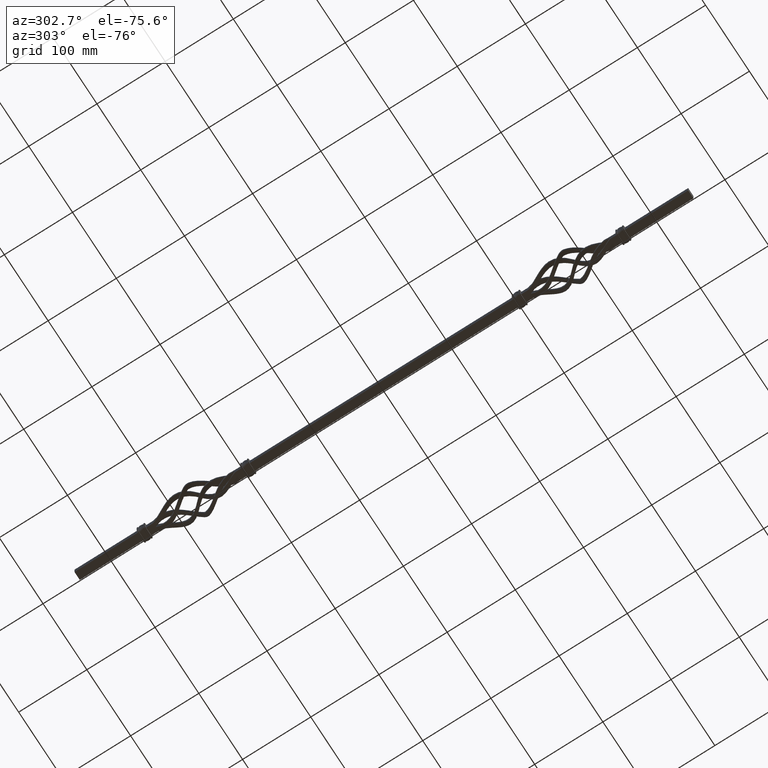
[diagram: clean part render]
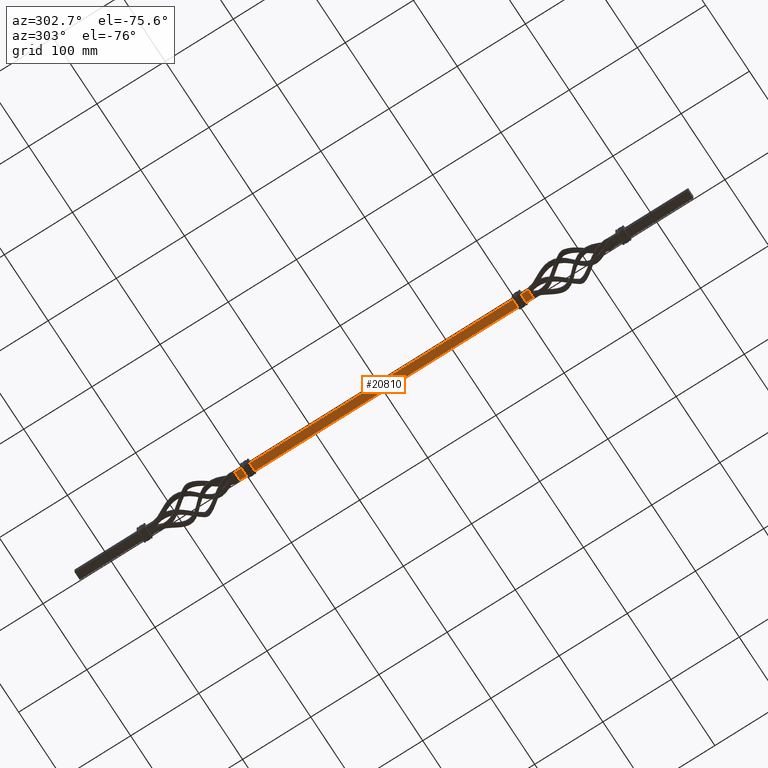
[diagram: same view with one face highlighted and labeled with its STEP entity id]
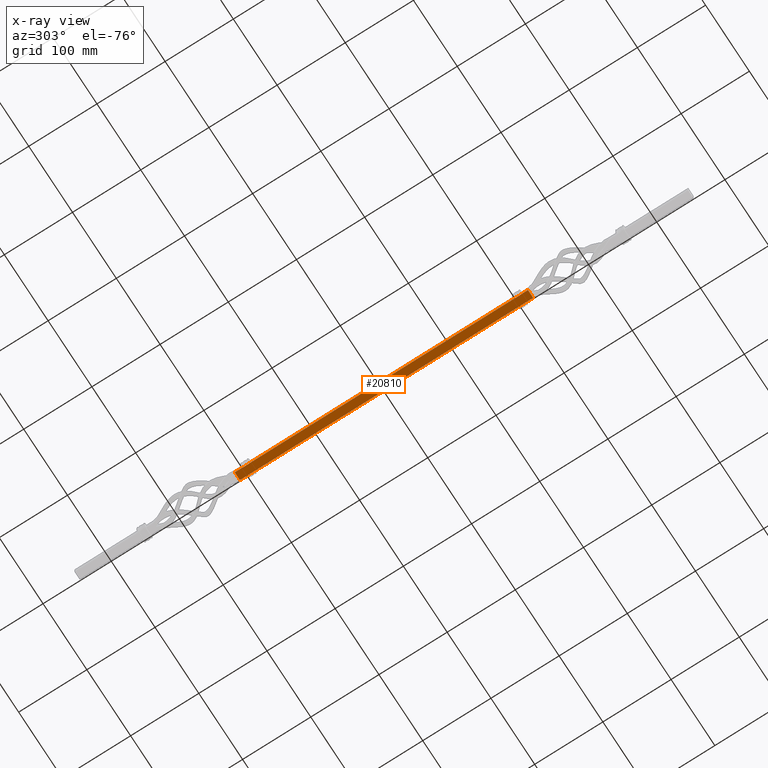
[diagram: x-ray of the same camera — body ghosted, the highlighted face saturated]
A machine part, auxiliary view. The second image highlights one B-rep face of the part: STEP entity #20810.
The next image is the same camera in x-ray: the body ghosted, the highlighted face saturated — about 0% of this face is hidden behind the body in this view.
In plain terms, the highlighted planar face has unit normal (0, 0, -1).
Its self-contained STEP definition (entity closure, byte-faithful):
#431 = CARTESIAN_POINT ( 'NONE',  ( 5.899999999728106737, 194.0000000000000000, -5.999999999999938716 ) ) ;
#949 = VECTOR ( 'NONE', #12552, 1000.000000000000000 ) ;
#1277 = VERTEX_POINT ( 'NONE', #10955 ) ;
#1296 = EDGE_CURVE ( 'NONE', #29489, #16997, #8900, .T. ) ;
#1341 = VERTEX_POINT ( 'NONE', #4289 ) ;
#1386 = VERTEX_POINT ( 'NONE', #431 ) ;
#1559 = LINE ( 'NONE', #23351, #9786 ) ;
#1947 = CARTESIAN_POINT ( 'NONE',  ( 5.900000000000131806, -204.0000000000000284, -5.999999999999938716 ) ) ;
#2047 = CARTESIAN_POINT ( 'NONE',  ( 6.000000000000000000, -204.3564495403946921, -5.999999999999938716 ) ) ;
#2289 = VECTOR ( 'NONE', #13179, 1000.000000000000000 ) ;
#2325 = EDGE_CURVE ( 'NONE', #22729, #29489, #8846, .T. ) ;
#2393 = LINE ( 'NONE', #27145, #21433 ) ;
#2481 = ORIENTED_EDGE ( 'NONE', *, *, #18950, .F. ) ;
#2769 = EDGE_LOOP ( 'NONE', ( #7223, #21032, #23254, #23362, #9645, #24294, #29984, #5933, #3305, #7260, #11704, #8876, #9341, #24890, #19594, #24636, #6767, #12547, #17560, #30873, #2481, #5408 ) ) ;
#3023 = VERTEX_POINT ( 'NONE', #20065 ) ;
#3305 = ORIENTED_EDGE ( 'NONE', *, *, #14228, .F. ) ;
#3418 = CARTESIAN_POINT ( 'NONE',  ( 5.899999999728106737, 194.0000000000000000, -5.999999999999938716 ) ) ;
#3558 = PLANE ( 'NONE',  #13133 ) ;
#3856 = DIRECTION ( 'NONE',  ( 0.000000000000000000, -1.000000000000000000, 0.000000000000000000 ) ) ;
#3881 = CARTESIAN_POINT ( 'NONE',  ( -8.673617379884035472E-16, -215.0000000000000284, -5.999999999999938716 ) ) ;
#3991 = B_SPLINE_CURVE_WITH_KNOTS ( 'NONE', 3,
 ( #13211, #15814, #22481, #17789 ),
 .UNSPECIFIED., .F., .F.,
 ( 4, 4 ),
 ( 0.001310261336106765748, 0.001680737425676013608 ),
 .UNSPECIFIED. ) ;
#4099 = DIRECTION ( 'NONE',  ( 0.000000000000000000, 1.000000000000000000, 0.000000000000000000 ) ) ;
#4105 = EDGE_CURVE ( 'NONE', #1341, #30235, #17307, .T. ) ;
#4289 = CARTESIAN_POINT ( 'NONE',  ( 5.999999999727976707, 215.0000000000000284, -6.000000000000022204 ) ) ;
#4318 = LINE ( 'NONE', #15825, #20302 ) ;
#4375 = VECTOR ( 'NONE', #16946, 1000.000000000000000 ) ;
#5093 = LINE ( 'NONE', #9930, #14745 ) ;
#5094 = CARTESIAN_POINT ( 'NONE',  ( -5.941135304131036854, 204.2473469721293213, -5.999999999999938716 ) ) ;
#5355 = EDGE_CURVE ( 'NONE', #1277, #16997, #13919, .T. ) ;
#5408 = ORIENTED_EDGE ( 'NONE', *, *, #13253, .F. ) ;
#5566 = CARTESIAN_POINT ( 'NONE',  ( -5.900000000272155987, 194.0000000000000000, -5.999999999999938716 ) ) ;
#5798 = CARTESIAN_POINT ( 'NONE',  ( 5.900000000000132694, -194.0000000000000000, -5.999999999999938716 ) ) ;
#5933 = ORIENTED_EDGE ( 'NONE', *, *, #27174, .F. ) ;
#6039 = VERTEX_POINT ( 'NONE', #14882 ) ;
#6225 = EDGE_CURVE ( 'NONE', #22580, #1277, #13052, .T. ) ;
#6420 = EDGE_CURVE ( 'NONE', #23204, #1341, #20181, .T. ) ;
#6422 = CARTESIAN_POINT ( 'NONE',  ( 5.899999999728129829, 204.1256050120199745, -5.999999999999938716 ) ) ;
#6767 = ORIENTED_EDGE ( 'NONE', *, *, #1296, .T. ) ;
#6852 = VECTOR ( 'NONE', #19796, 1000.000000000000000 ) ;
#6908 = VECTOR ( 'NONE', #9478, 1000.000000000000000 ) ;
#7179 = VECTOR ( 'NONE', #21300, 1000.000000000000000 ) ;
#7223 = ORIENTED_EDGE ( 'NONE', *, *, #22896, .F. ) ;
#7260 = ORIENTED_EDGE ( 'NONE', *, *, #24767, .F. ) ;
#7353 = CARTESIAN_POINT ( 'NONE',  ( -5.900000000000130029, -204.1260895240804700, -5.999999999999938716 ) ) ;
#7512 = B_SPLINE_CURVE_WITH_KNOTS ( 'NONE', 3,
 ( #28456, #18861, #16476, #9471 ),
 .UNSPECIFIED., .F., .F.,
 ( 4, 4 ),
 ( 0.001680737425676015993, 0.002051352701520401441 ),
 .UNSPECIFIED. ) ;
#7575 = VERTEX_POINT ( 'NONE', #24405 ) ;
#7779 = CARTESIAN_POINT ( 'NONE',  ( -5.900000000272179079, 193.8743949883602795, -5.999999999999938716 ) ) ;
#8846 = LINE ( 'NONE', #26401, #949 ) ;
#8876 = ORIENTED_EDGE ( 'NONE', *, *, #20991, .F. ) ;
#8900 = LINE ( 'NONE', #14060, #21577 ) ;
#9001 = VERTEX_POINT ( 'NONE', #30379 ) ;
#9332 = DIRECTION ( 'NONE',  ( 0.000000000000000000, 1.000000000000000000, 0.000000000000000000 ) ) ;
#9341 = ORIENTED_EDGE ( 'NONE', *, *, #17240, .F. ) ;
#9343 = CARTESIAN_POINT ( 'NONE',  ( -6.000000000000000000, 193.6435504601002151, -6.000000000004954259 ) ) ;
#9471 = CARTESIAN_POINT ( 'NONE',  ( 6.000000000000000000, -193.6435504595882264, -5.999999999999938716 ) ) ;
#9478 = DIRECTION ( 'NONE',  ( -1.000000000000000000, -0.000000000000000000, -0.000000000000000000 ) ) ;
#9645 = ORIENTED_EDGE ( 'NONE', *, *, #19219, .F. ) ;
#9749 = LINE ( 'NONE', #13487, #2289 ) ;
#9786 = VECTOR ( 'NONE', #18447, 1000.000000000000000 ) ;
#9813 = DIRECTION ( 'NONE',  ( -1.000000000000000000, 0.000000000000000000, 3.491481338843133750E-15 ) ) ;
#9930 = CARTESIAN_POINT ( 'NONE',  ( -5.900000000272155987, 205.0000000000000284, -5.999999999999938716 ) ) ;
#10764 = DIRECTION ( 'NONE',  ( 0.000000000000000000, 0.000000000000000000, -1.000000000000000000 ) ) ;
#10955 = CARTESIAN_POINT ( 'NONE',  ( -6.000000000000000000, -204.3564495404118020, -5.999999999999940492 ) ) ;
#11475 = VECTOR ( 'NONE', #19620, 1000.000000000000000 ) ;
#11704 = ORIENTED_EDGE ( 'NONE', *, *, #29119, .F. ) ;
#11781 = B_SPLINE_CURVE_WITH_KNOTS ( 'NONE', 3,
 ( #19441, #7779, #21846, #29344 ),
 .UNSPECIFIED., .F., .F.,
 ( 4, 4 ),
 ( 0.001730514864180702963, 0.002100971034116490103 ),
 .UNSPECIFIED. ) ;
#11991 = B_SPLINE_CURVE_WITH_KNOTS ( 'NONE', 3,
 ( #26342, #17587, #22388, #3418 ),
 .UNSPECIFIED., .F., .F.,
 ( 4, 4 ),
 ( 0.001360810894167954581, 0.001730514864907693913 ),
 .UNSPECIFIED. ) ;
#12051 = FACE_OUTER_BOUND ( 'NONE', #2769, .T. ) ;
#12547 = ORIENTED_EDGE ( 'NONE', *, *, #5355, .F. ) ;
#12552 = DIRECTION ( 'NONE',  ( -1.000000000000000000, -0.000000000000000000, -0.000000000000000000 ) ) ;
#12808 = VERTEX_POINT ( 'NONE', #17691 ) ;
#13052 = B_SPLINE_CURVE_WITH_KNOTS ( 'NONE', 3,
 ( #21823, #7353, #26502, #26291 ),
 .UNSPECIFIED., .F., .F.,
 ( 4, 4 ),
 ( 0.001680737425676015126, 0.002051352701520401441 ),
 .UNSPECIFIED. ) ;
#13133 = AXIS2_PLACEMENT_3D ( 'NONE', #3881, #10764, #13250 ) ;
#13179 = DIRECTION ( 'NONE',  ( -0.000000000000000000, -1.000000000000000000, -0.000000000000000000 ) ) ;
#13211 = CARTESIAN_POINT ( 'NONE',  ( -6.000000000000000000, -193.6435504596053363, -5.999999999999939604 ) ) ;
#13250 = DIRECTION ( 'NONE',  ( -1.000000000000000000, 0.000000000000000000, -0.000000000000000000 ) ) ;
#13253 = EDGE_CURVE ( 'NONE', #17712, #7575, #15563, .T. ) ;
#13487 = CARTESIAN_POINT ( 'NONE',  ( -6.000000000000000000, 16.97056274847694013, -5.999999999999940492 ) ) ;
#13651 = EDGE_CURVE ( 'NONE', #22729, #9001, #23761, .T. ) ;
#13919 = LINE ( 'NONE', #26887, #6852 ) ;
#13993 = EDGE_CURVE ( 'NONE', #9001, #6039, #14104, .T. ) ;
#14060 = CARTESIAN_POINT ( 'NONE',  ( 4.189777606611760657E-14, -215.0000000000000284, -6.000000000000000000 ) ) ;
#14104 = B_SPLINE_CURVE_WITH_KNOTS ( 'NONE', 3,
 ( #2047, #23231, #18741, #1947 ),
 .UNSPECIFIED., .F., .F.,
 ( 4, 4 ),
 ( 0.001310261336106769868, 0.001680737425676017728 ),
 .UNSPECIFIED. ) ;
#14228 = EDGE_CURVE ( 'NONE', #1386, #30117, #27048, .T. ) ;
#14745 = VECTOR ( 'NONE', #28999, 1000.000000000000000 ) ;
#14882 = CARTESIAN_POINT ( 'NONE',  ( 5.900000000000131806, -204.0000000000000284, -5.999999999999938716 ) ) ;
#15211 = EDGE_CURVE ( 'NONE', #25079, #22580, #4318, .T. ) ;
#15563 = LINE ( 'NONE', #22249, #11475 ) ;
#15729 = CARTESIAN_POINT ( 'NONE',  ( 5.899999999728112954, 204.0000000000000284, -5.999999999999938716 ) ) ;
#15814 = CARTESIAN_POINT ( 'NONE',  ( -5.941056446958723924, -193.7527991847809687, -5.999999999999938716 ) ) ;
#15825 = CARTESIAN_POINT ( 'NONE',  ( -5.900000000000131806, -205.0000000000000284, -5.999999999999938716 ) ) ;
#15942 = CARTESIAN_POINT ( 'NONE',  ( -5.900000000000130917, -204.0000000000000284, -5.999999999999938716 ) ) ;
#15963 = B_SPLINE_CURVE_WITH_KNOTS ( 'NONE', 3,
 ( #17374, #5094, #26846, #21864 ),
 .UNSPECIFIED., .F., .F.,
 ( 4, 4 ),
 ( 0.001360810894568865656, 0.001730514864180704047 ),
 .UNSPECIFIED. ) ;
#16476 = CARTESIAN_POINT ( 'NONE',  ( 5.941145397887470203, -193.7526343189850877, -5.999999999999938716 ) ) ;
#16556 = VERTEX_POINT ( 'NONE', #19661 ) ;
#16946 = DIRECTION ( 'NONE',  ( 0.000000000000000000, 1.000000000000000000, -0.000000000000000000 ) ) ;
#16977 = B_SPLINE_CURVE_WITH_KNOTS ( 'NONE', 3,
 ( #25270, #6422, #20681, #29972 ),
 .UNSPECIFIED., .F., .F.,
 ( 4, 4 ),
 ( 0.001730514864907695214, 0.002100971035982271504 ),
 .UNSPECIFIED. ) ;
#16997 = VERTEX_POINT ( 'NONE', #21343 ) ;
#17240 = EDGE_CURVE ( 'NONE', #6039, #18878, #1559, .T. ) ;
#17307 = LINE ( 'NONE', #28465, #6908 ) ;
#17374 = CARTESIAN_POINT ( 'NONE',  ( -6.000000000000000000, 204.3564495398905194, -5.999999999999946709 ) ) ;
#17560 = ORIENTED_EDGE ( 'NONE', *, *, #6225, .F. ) ;
#17587 = CARTESIAN_POINT ( 'NONE',  ( 5.941135303835085146, 193.7526530271314869, -5.999999999999938716 ) ) ;
#17691 = CARTESIAN_POINT ( 'NONE',  ( 6.000000000000000000, -193.6435504595882264, -5.999999999999938716 ) ) ;
#17712 = VERTEX_POINT ( 'NONE', #9343 ) ;
#17789 = CARTESIAN_POINT ( 'NONE',  ( -5.900000000000131806, -194.0000000000000000, -5.999999999999938716 ) ) ;
#17869 = VERTEX_POINT ( 'NONE', #5566 ) ;
#18072 = EDGE_CURVE ( 'NONE', #3023, #16556, #9749, .T. ) ;
#18146 = VERTEX_POINT ( 'NONE', #30785 ) ;
#18182 = CARTESIAN_POINT ( 'NONE',  ( 6.000000000000000000, 193.6435504591011352, -5.999999999999938716 ) ) ;
#18447 = DIRECTION ( 'NONE',  ( 0.000000000000000000, 1.000000000000000000, 0.000000000000000000 ) ) ;
#18741 = CARTESIAN_POINT ( 'NONE',  ( 5.900000000000130917, -204.1260421705785291, -5.999999999999938716 ) ) ;
#18861 = CARTESIAN_POINT ( 'NONE',  ( 5.900000000000132694, -193.8739104759195300, -5.999999999999938716 ) ) ;
#18878 = VERTEX_POINT ( 'NONE', #5798 ) ;
#18899 = CARTESIAN_POINT ( 'NONE',  ( 6.000000000000000000, -215.0000000000000284, -5.999999999999938716 ) ) ;
#18950 = EDGE_CURVE ( 'NONE', #7575, #25079, #3991, .T. ) ;
#19018 = CARTESIAN_POINT ( 'NONE',  ( 6.000000000005006662, 204.3564495409081587, -5.999999999999938716 ) ) ;
#19219 = EDGE_CURVE ( 'NONE', #30235, #3023, #2393, .T. ) ;
#19441 = CARTESIAN_POINT ( 'NONE',  ( -5.900000000272155987, 194.0000000000000000, -5.999999999999938716 ) ) ;
#19594 = ORIENTED_EDGE ( 'NONE', *, *, #13651, .F. ) ;
#19620 = DIRECTION ( 'NONE',  ( -0.000000000000000000, -1.000000000000000000, -0.000000000000000000 ) ) ;
#19661 = CARTESIAN_POINT ( 'NONE',  ( -6.000000000000000000, 204.3564495398905194, -5.999999999999946709 ) ) ;
#19796 = DIRECTION ( 'NONE',  ( -0.000000000000000000, -1.000000000000000000, -0.000000000000000000 ) ) ;
#20017 = VECTOR ( 'NONE', #9332, 1000.000000000000000 ) ;
#20065 = CARTESIAN_POINT ( 'NONE',  ( -6.000000000272066814, 215.0000000000000284, -5.999999999999980460 ) ) ;
#20181 = LINE ( 'NONE', #18899, #7179 ) ;
#20302 = VECTOR ( 'NONE', #3856, 1000.000000000000000 ) ;
#20681 = CARTESIAN_POINT ( 'NONE',  ( 5.941072655532120272, 204.2472308575900968, -5.999999999999938716 ) ) ;
#20810 = ADVANCED_FACE ( 'NONE', ( #12051 ), #3558, .T. ) ;
#20950 = CARTESIAN_POINT ( 'NONE',  ( 6.000000000000000000, -215.0000000000000284, -5.999999999999938716 ) ) ;
#20991 = EDGE_CURVE ( 'NONE', #18878, #12808, #7512, .T. ) ;
#21032 = ORIENTED_EDGE ( 'NONE', *, *, #30771, .F. ) ;
#21033 = CARTESIAN_POINT ( 'NONE',  ( -2.720247659424102701E-10, 215.0000000000000284, -6.000000000000023093 ) ) ;
#21137 = EDGE_CURVE ( 'NONE', #16556, #18146, #15963, .T. ) ;
#21300 = DIRECTION ( 'NONE',  ( 0.000000000000000000, 1.000000000000000000, 0.000000000000000000 ) ) ;
#21343 = CARTESIAN_POINT ( 'NONE',  ( -5.999999999999958256, -215.0000000000000284, -5.999999999999979572 ) ) ;
#21433 = VECTOR ( 'NONE', #9813, 1000.000000000000000 ) ;
#21577 = VECTOR ( 'NONE', #23342, 1000.000000000000000 ) ;
#21823 = CARTESIAN_POINT ( 'NONE',  ( -5.900000000000130917, -204.0000000000000284, -5.999999999999938716 ) ) ;
#21846 = CARTESIAN_POINT ( 'NONE',  ( -5.941072655831810323, 193.7527691431430696, -5.999999999999938716 ) ) ;
#21864 = CARTESIAN_POINT ( 'NONE',  ( -5.900000000272155098, 204.0000000000000284, -5.999999999999938716 ) ) ;
#22249 = CARTESIAN_POINT ( 'NONE',  ( -6.000000000000000000, 16.97056274847694013, -5.999999999999940492 ) ) ;
#22388 = CARTESIAN_POINT ( 'NONE',  ( 5.899999999728143152, 193.8746500252542262, -5.999999999999938716 ) ) ;
#22481 = CARTESIAN_POINT ( 'NONE',  ( -5.900000000000131806, -193.8739578294214994, -5.999999999999938716 ) ) ;
#22580 = VERTEX_POINT ( 'NONE', #15942 ) ;
#22729 = VERTEX_POINT ( 'NONE', #23750 ) ;
#22896 = EDGE_CURVE ( 'NONE', #17869, #17712, #11781, .T. ) ;
#23204 = VERTEX_POINT ( 'NONE', #19018 ) ;
#23231 = CARTESIAN_POINT ( 'NONE',  ( 5.941056446958723036, -204.2472008152190597, -5.999999999999938716 ) ) ;
#23254 = ORIENTED_EDGE ( 'NONE', *, *, #21137, .F. ) ;
#23342 = DIRECTION ( 'NONE',  ( -1.000000000000000000, 0.000000000000000000, 3.491481338843133750E-15 ) ) ;
#23351 = CARTESIAN_POINT ( 'NONE',  ( 5.900000000000132694, -205.0000000000000284, -5.999999999999938716 ) ) ;
#23362 = ORIENTED_EDGE ( 'NONE', *, *, #18072, .F. ) ;
#23609 = CARTESIAN_POINT ( 'NONE',  ( 6.000000000000000000, -215.0000000000000284, -5.999999999999938716 ) ) ;
#23750 = CARTESIAN_POINT ( 'NONE',  ( 6.000000000000000000, -215.0000000000000284, -5.999999999999937828 ) ) ;
#23761 = LINE ( 'NONE', #20950, #25248 ) ;
#23870 = VERTEX_POINT ( 'NONE', #18182 ) ;
#24294 = ORIENTED_EDGE ( 'NONE', *, *, #4105, .F. ) ;
#24333 = CARTESIAN_POINT ( 'NONE',  ( 5.899999999728106737, 205.0000000000000284, -5.999999999999938716 ) ) ;
#24405 = CARTESIAN_POINT ( 'NONE',  ( -6.000000000000000000, -193.6435504596053363, -5.999999999999939604 ) ) ;
#24636 = ORIENTED_EDGE ( 'NONE', *, *, #2325, .T. ) ;
#24767 = EDGE_CURVE ( 'NONE', #23870, #1386, #11991, .T. ) ;
#24890 = ORIENTED_EDGE ( 'NONE', *, *, #13993, .F. ) ;
#25079 = VERTEX_POINT ( 'NONE', #28010 ) ;
#25248 = VECTOR ( 'NONE', #4099, 1000.000000000000000 ) ;
#25270 = CARTESIAN_POINT ( 'NONE',  ( 5.899999999728112954, 204.0000000000000284, -5.999999999999938716 ) ) ;
#26145 = CARTESIAN_POINT ( 'NONE',  ( -8.673617379884035472E-16, -215.0000000000000284, -5.999999999999938716 ) ) ;
#26291 = CARTESIAN_POINT ( 'NONE',  ( -6.000000000000000000, -204.3564495404118020, -5.999999999999940492 ) ) ;
#26342 = CARTESIAN_POINT ( 'NONE',  ( 6.000000000000000000, 193.6435504591011352, -5.999999999999938716 ) ) ;
#26401 = CARTESIAN_POINT ( 'NONE',  ( -8.673617379884035472E-16, -215.0000000000000284, -5.999999999999938716 ) ) ;
#26502 = CARTESIAN_POINT ( 'NONE',  ( -5.941145397887467539, -204.2473656810149123, -5.999999999999938716 ) ) ;
#26846 = CARTESIAN_POINT ( 'NONE',  ( -5.900000000272189737, 204.1253499743692146, -5.999999999999938716 ) ) ;
#26887 = CARTESIAN_POINT ( 'NONE',  ( -6.000000000000000000, 16.97056274847694013, -5.999999999999940492 ) ) ;
#27048 = LINE ( 'NONE', #24333, #4375 ) ;
#27145 = CARTESIAN_POINT ( 'NONE',  ( -2.720666637184763783E-10, 215.0000000000000284, -6.000000000000000888 ) ) ;
#27174 = EDGE_CURVE ( 'NONE', #30117, #23204, #16977, .T. ) ;
#28010 = CARTESIAN_POINT ( 'NONE',  ( -5.900000000000131806, -194.0000000000000000, -5.999999999999938716 ) ) ;
#28456 = CARTESIAN_POINT ( 'NONE',  ( 5.900000000000132694, -194.0000000000000000, -5.999999999999938716 ) ) ;
#28465 = CARTESIAN_POINT ( 'NONE',  ( -2.720247659424102701E-10, 215.0000000000000284, -6.000000000000023093 ) ) ;
#28999 = DIRECTION ( 'NONE',  ( -0.000000000000000000, -1.000000000000000000, -0.000000000000000000 ) ) ;
#29119 = EDGE_CURVE ( 'NONE', #12808, #23870, #30101, .T. ) ;
#29344 = CARTESIAN_POINT ( 'NONE',  ( -6.000000000000000000, 193.6435504601002151, -6.000000000004954259 ) ) ;
#29489 = VERTEX_POINT ( 'NONE', #26145 ) ;
#29972 = CARTESIAN_POINT ( 'NONE',  ( 6.000000000005006662, 204.3564495409081587, -5.999999999999938716 ) ) ;
#29984 = ORIENTED_EDGE ( 'NONE', *, *, #6420, .F. ) ;
#30101 = LINE ( 'NONE', #23609, #20017 ) ;
#30117 = VERTEX_POINT ( 'NONE', #15729 ) ;
#30235 = VERTEX_POINT ( 'NONE', #21033 ) ;
#30379 = CARTESIAN_POINT ( 'NONE',  ( 6.000000000000000000, -204.3564495403946921, -5.999999999999938716 ) ) ;
#30771 = EDGE_CURVE ( 'NONE', #18146, #17869, #5093, .T. ) ;
#30785 = CARTESIAN_POINT ( 'NONE',  ( -5.900000000272155098, 204.0000000000000284, -5.999999999999938716 ) ) ;
#30873 = ORIENTED_EDGE ( 'NONE', *, *, #15211, .F. ) ;